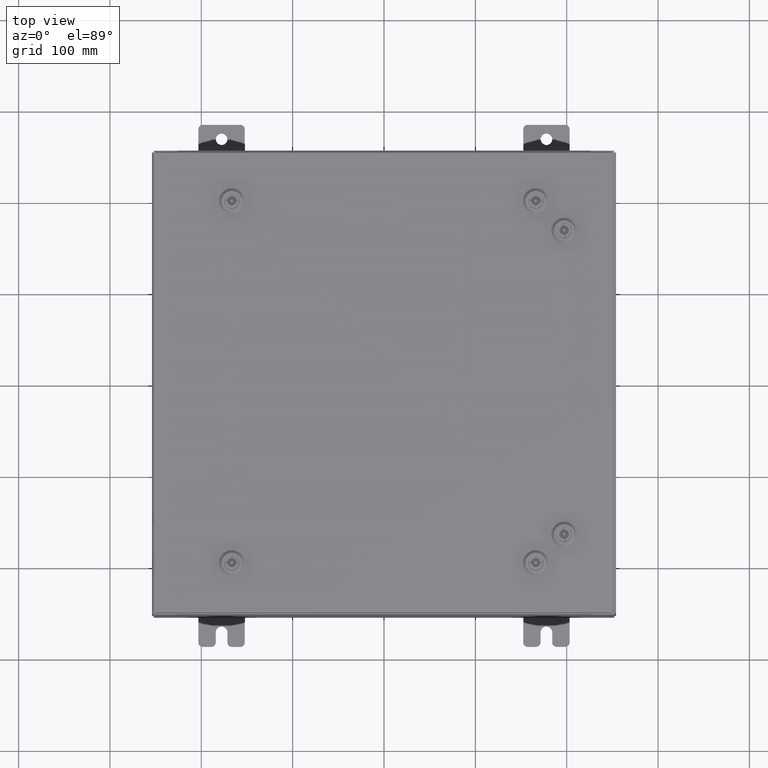
[diagram: clean part render]
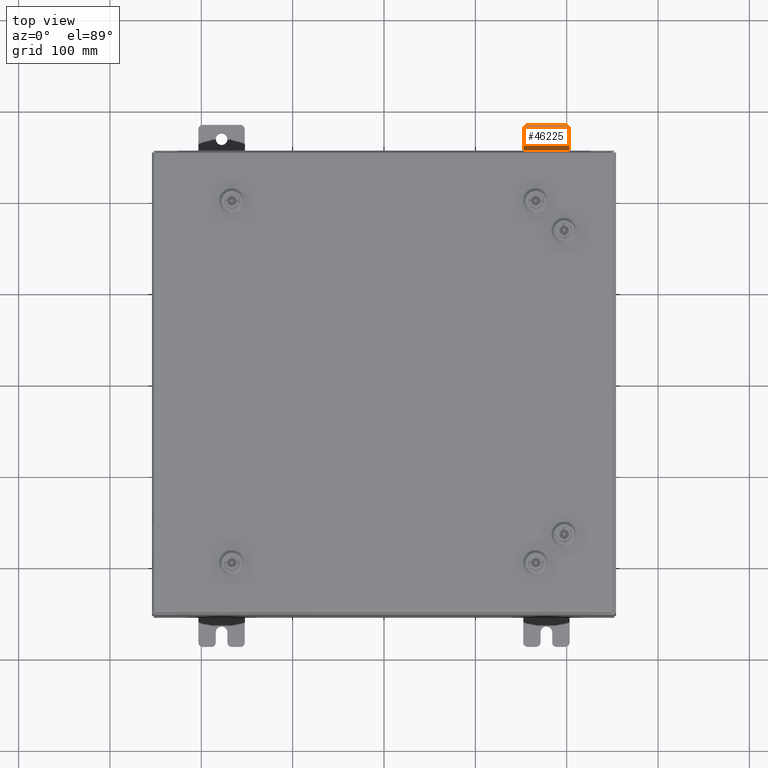
[diagram: same view with one face highlighted and labeled with its STEP entity id]
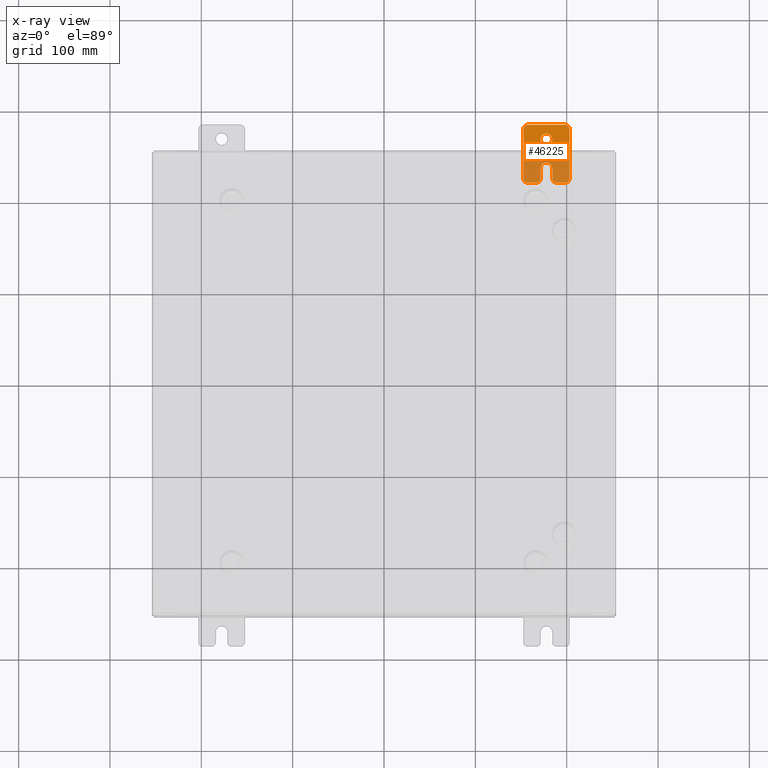
[diagram: x-ray of the same camera — body ghosted, the highlighted face saturated]
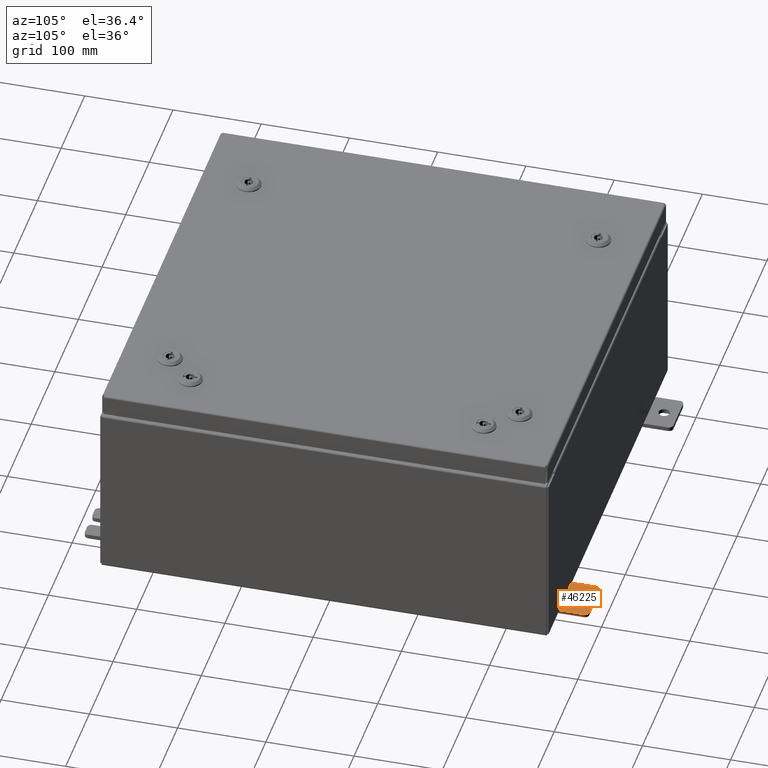
[diagram: same view with one face highlighted and labeled with its STEP entity id]
A machine part, top view. The second image highlights one B-rep face of the part: STEP entity #46225.
The next image is the same camera in x-ray: the body ghosted, the highlighted face saturated — about 53% of this face is hidden behind the body in this view.
A second angle (auxiliary view) of the same face is appended — the face is thin or edge-on in the first view.
In plain terms, the highlighted planar face has unit normal (0, 0, 1).
Its self-contained STEP definition (entity closure, byte-faithful):
#20 = ORIENTED_EDGE ( 'NONE', *, *, #58164, .T. ) ;
#1065 = AXIS2_PLACEMENT_3D ( 'NONE', #60147, #26041, #60358 ) ;
#1490 = CARTESIAN_POINT ( 'NONE',  ( 4.039428427013647300E-016, 0.6249999999999992200, -9.783840404509077400E-018 ) ) ;
#1939 = CARTESIAN_POINT ( 'NONE',  ( 4.780733988912460100E-016, -0.6249999999999993300, 5.858939755051854500E-017 ) ) ;
#2426 = DIRECTION ( 'NONE',  ( -6.556435184794182400E-016, -1.000000000000000000, -1.639108796198545600E-016 ) ) ;
#3705 = DIRECTION ( 'NONE',  ( 0.0000000000000000000, 0.0000000000000000000, -1.000000000000000000 ) ) ;
#3987 = CARTESIAN_POINT ( 'NONE',  ( 0.0000000000000000000, -1.250000000000003100, 0.4400000000000020000 ) ) ;
#4060 = ORIENTED_EDGE ( 'NONE', *, *, #44642, .T. ) ;
#4136 = EDGE_CURVE ( 'NONE', #46722, #30899, #31116, .T. ) ;
#5086 = VECTOR ( 'NONE', #50229, 39.37007874015748100 ) ;
#5337 = AXIS2_PLACEMENT_3D ( 'NONE', #6723, #41002, #11632 ) ;
#6185 = VECTOR ( 'NONE', #22309, 39.37007874015748100 ) ;
#6286 = VERTEX_POINT ( 'NONE', #50429 ) ;
#6351 = EDGE_CURVE ( 'NONE', #53822, #40255, #43489, .T. ) ;
#6433 = DIRECTION ( 'NONE',  ( -5.163192708025533800E-017, 0.0000000000000000000, -1.000000000000000000 ) ) ;
#6723 = CARTESIAN_POINT ( 'NONE',  ( 4.039428427013647300E-016, 0.6249999999999992200, -9.783840404509077400E-018 ) ) ;
#6826 = DIRECTION ( 'NONE',  ( 1.000000000000000000, 0.0000000000000000000, -0.0000000000000000000 ) ) ;
#6892 = DIRECTION ( 'NONE',  ( -6.523827964459551700E-016, -1.000000000000000000, 0.0000000000000000000 ) ) ;
#7139 = AXIS2_PLACEMENT_3D ( 'NONE', #7308, #41587, #12211 ) ;
#7216 = EDGE_CURVE ( 'NONE', #7818, #39175, #21941, .T. ) ;
#7308 = CARTESIAN_POINT ( 'NONE',  ( 0.0000000000000000000, -1.060000000000002100, 0.4400000000000016700 ) ) ;
#7551 = CIRCLE ( 'NONE', #56160, 0.1900000000000011100 ) ;
#7818 = VERTEX_POINT ( 'NONE', #26678 ) ;
#7877 = ORIENTED_EDGE ( 'NONE', *, *, #7216, .T. ) ;
#8533 = CARTESIAN_POINT ( 'NONE',  ( 4.168508244714285900E-016, 0.6249999999999992200, 0.2499999999999999200 ) ) ;
#9262 = VECTOR ( 'NONE', #2426, 39.37007874015748100 ) ;
#11632 = DIRECTION ( 'NONE',  ( -5.163192708025533800E-017, 0.0000000000000000000, -1.000000000000000000 ) ) ;
#11973 = DIRECTION ( 'NONE',  ( 1.000000000000000000, 0.0000000000000000000, -0.0000000000000000000 ) ) ;
#12211 = DIRECTION ( 'NONE',  ( 0.0000000000000000000, 0.0000000000000000000, -1.000000000000000000 ) ) ;
#12456 = AXIS2_PLACEMENT_3D ( 'NONE', #36177, #6826, #41111 ) ;
#12607 = CARTESIAN_POINT ( 'NONE',  ( 0.0000000000000000000, 1.249999999999997600, 0.9999999999999951200 ) ) ;
#12720 = AXIS2_PLACEMENT_3D ( 'NONE', #41343, #11973, #46263 ) ;
#13471 = DIRECTION ( 'NONE',  ( 0.0000000000000000000, 1.000000000000000000, -1.639108796198558100E-015 ) ) ;
#14847 = AXIS2_PLACEMENT_3D ( 'NONE', #1939, #36233, #6892 ) ;
#16546 = DIRECTION ( 'NONE',  ( 1.000000000000000000, 0.0000000000000000000, -0.0000000000000000000 ) ) ;
#17536 = DIRECTION ( 'NONE',  ( 0.0000000000000000000, -1.000000000000000000, 1.639108796198558100E-015 ) ) ;
#18513 = ORIENTED_EDGE ( 'NONE', *, *, #57307, .T. ) ;
#19196 = LINE ( 'NONE', #41849, #6185 ) ;
#19279 = EDGE_CURVE ( 'NONE', #38373, #26721, #28245, .T. ) ;
#20782 = LINE ( 'NONE', #12607, #45343 ) ;
#20973 = ORIENTED_EDGE ( 'NONE', *, *, #4136, .T. ) ;
#21487 = AXIS2_PLACEMENT_3D ( 'NONE', #22989, #57291, #27925 ) ;
#21696 = CIRCLE ( 'NONE', #14847, 0.2499999999999999200 ) ;
#21941 = CIRCLE ( 'NONE', #12720, 0.1900000000000011100 ) ;
#22176 = ORIENTED_EDGE ( 'NONE', *, *, #58089, .T. ) ;
#22309 = DIRECTION ( 'NONE',  ( 0.0000000000000000000, -1.639108796198553600E-015, -1.000000000000000000 ) ) ;
#22739 = CARTESIAN_POINT ( 'NONE',  ( 3.910348609313009100E-016, 0.6249999999999992200, -0.2499999999999999200 ) ) ;
#22989 = CARTESIAN_POINT ( 'NONE',  ( 0.0000000000000000000, 1.059999999999993600, -0.8100000000000089400 ) ) ;
#23369 = ORIENTED_EDGE ( 'NONE', *, *, #54704, .T. ) ;
#25197 = EDGE_LOOP ( 'NONE', ( #29363, #54084 ) ) ;
#25391 = CARTESIAN_POINT ( 'NONE',  ( 0.0000000000000000000, 1.059999999999993400, -1.000000000000010000 ) ) ;
#25859 = CARTESIAN_POINT ( 'NONE',  ( 0.0000000000000000000, 1.249999999999997300, 0.8099999999999935000 ) ) ;
#26041 = DIRECTION ( 'NONE',  ( 1.000000000000000000, 0.0000000000000000000, -0.0000000000000000000 ) ) ;
#26145 = EDGE_CURVE ( 'NONE', #29754, #46722, #45474, .T. ) ;
#26678 = CARTESIAN_POINT ( 'NONE',  ( 0.0000000000000000000, -1.250000000000005300, -0.8100000000000047200 ) ) ;
#26721 = VERTEX_POINT ( 'NONE', #25859 ) ;
#26800 = EDGE_CURVE ( 'NONE', #6286, #59626, #51590, .T. ) ;
#27079 = VECTOR ( 'NONE', #13471, 39.37007874015748100 ) ;
#27925 = DIRECTION ( 'NONE',  ( 0.0000000000000000000, 0.0000000000000000000, -1.000000000000000000 ) ) ;
#28004 = VERTEX_POINT ( 'NONE', #59402 ) ;
#28245 = LINE ( 'NONE', #32788, #42857 ) ;
#29363 = ORIENTED_EDGE ( 'NONE', *, *, #62142, .F. ) ;
#29580 = VERTEX_POINT ( 'NONE', #55824 ) ;
#29754 = VERTEX_POINT ( 'NONE', #3987 ) ;
#30899 = VERTEX_POINT ( 'NONE', #56439 ) ;
#31116 = LINE ( 'NONE', #45094, #5086 ) ;
#32788 = CARTESIAN_POINT ( 'NONE',  ( 0.0000000000000000000, 1.249999999999994200, -1.000000000000010400 ) ) ;
#33050 = DIRECTION ( 'NONE',  ( 1.000000000000000000, 0.0000000000000000000, -0.0000000000000000000 ) ) ;
#34527 = VERTEX_POINT ( 'NONE', #59338 ) ;
#34903 = CARTESIAN_POINT ( 'NONE',  ( 0.0000000000000000000, -1.250000000000005600, -1.000000000000006200 ) ) ;
#35553 = EDGE_CURVE ( 'NONE', #34527, #29754, #54566, .T. ) ;
#35775 = DIRECTION ( 'NONE',  ( 1.000000000000000000, -0.0000000000000000000, -5.163192708025532000E-017 ) ) ;
#36177 = CARTESIAN_POINT ( 'NONE',  ( 0.0000000000000000000, -1.060000000000003400, -0.4400000000000005000 ) ) ;
#36233 = DIRECTION ( 'NONE',  ( -1.000000000000000000, 6.523827964459549700E-016, 5.163192708025532000E-017 ) ) ;
#37102 = CARTESIAN_POINT ( 'NONE',  ( 0.0000000000000000000, -1.060000000000004500, -1.000000000000006400 ) ) ;
#38373 = VERTEX_POINT ( 'NONE', #56433 ) ;
#38581 = LINE ( 'NONE', #34903, #27079 ) ;
#39175 = VERTEX_POINT ( 'NONE', #37102 ) ;
#40234 = ORIENTED_EDGE ( 'NONE', *, *, #55071, .T. ) ;
#40255 = VERTEX_POINT ( 'NONE', #22739 ) ;
#41002 = DIRECTION ( 'NONE',  ( 1.000000000000000000, -0.0000000000000000000, -5.163192708025532000E-017 ) ) ;
#41111 = DIRECTION ( 'NONE',  ( 0.0000000000000000000, 0.0000000000000000000, -1.000000000000000000 ) ) ;
#41343 = CARTESIAN_POINT ( 'NONE',  ( 0.0000000000000000000, -1.060000000000004100, -0.8100000000000050500 ) ) ;
#41587 = DIRECTION ( 'NONE',  ( 1.000000000000000000, 0.0000000000000000000, -0.0000000000000000000 ) ) ;
#41698 = CARTESIAN_POINT ( 'NONE',  ( 0.0000000000000000000, -1.250000000000002200, 0.9999999999999992200 ) ) ;
#41849 = CARTESIAN_POINT ( 'NONE',  ( 0.0000000000000000000, -1.250000000000002200, 0.9999999999999992200 ) ) ;
#42184 = AXIS2_PLACEMENT_3D ( 'NONE', #1490, #35775, #6433 ) ;
#42668 = DIRECTION ( 'NONE',  ( 0.0000000000000000000, 1.639108796198553600E-015, 1.000000000000000000 ) ) ;
#42709 = CARTESIAN_POINT ( 'NONE',  ( 0.0000000000000000000, 1.059999999999996500, 0.9999999999999953400 ) ) ;
#42717 = ORIENTED_EDGE ( 'NONE', *, *, #26800, .T. ) ;
#42857 = VECTOR ( 'NONE', #42668, 39.37007874015748100 ) ;
#43191 = CARTESIAN_POINT ( 'NONE',  ( 1.928684683526972300E-016, -1.060000000000002100, 0.2500000000000005000 ) ) ;
#43489 = CIRCLE ( 'NONE', #5337, 0.2499999999999999200 ) ;
#43794 = ORIENTED_EDGE ( 'NONE', *, *, #59013, .T. ) ;
#44233 = VERTEX_POINT ( 'NONE', #25391 ) ;
#44642 = EDGE_CURVE ( 'NONE', #44233, #38373, #61816, .T. ) ;
#45094 = CARTESIAN_POINT ( 'NONE',  ( 6.829619984160658000E-017, -1.250000000000003800, 0.2500000000000005000 ) ) ;
#45343 = VECTOR ( 'NONE', #17536, 39.37007874015748100 ) ;
#45474 = CIRCLE ( 'NONE', #7139, 0.1900000000000011400 ) ;
#45491 = CARTESIAN_POINT ( 'NONE',  ( 0.0000000000000000000, -1.250000000000004700, -0.4400000000000002200 ) ) ;
#45922 = CARTESIAN_POINT ( 'NONE',  ( 0.0000000000000000000, 1.059999999999996300, 0.8099999999999938400 ) ) ;
#46225 = ADVANCED_FACE ( 'NONE', ( #59410, #46371 ), #50504, .T. ) ;
#46263 = DIRECTION ( 'NONE',  ( 0.0000000000000000000, 0.0000000000000000000, -1.000000000000000000 ) ) ;
#46371 = FACE_OUTER_BOUND ( 'NONE', #61755, .T. ) ;
#46722 = VERTEX_POINT ( 'NONE', #43191 ) ;
#49073 = VERTEX_POINT ( 'NONE', #42709 ) ;
#49084 = EDGE_CURVE ( 'NONE', #28004, #34527, #7551, .T. ) ;
#49906 = LINE ( 'NONE', #61138, #9262 ) ;
#50229 = DIRECTION ( 'NONE',  ( 6.556435184794182400E-016, 1.000000000000000000, 0.0000000000000000000 ) ) ;
#50429 = CARTESIAN_POINT ( 'NONE',  ( 1.928684683526964400E-016, -1.060000000000003400, -0.2499999999999994400 ) ) ;
#50504 = PLANE ( 'NONE',  #1065 ) ;
#50861 = DIRECTION ( 'NONE',  ( 0.0000000000000000000, 0.0000000000000000000, -1.000000000000000000 ) ) ;
#51552 = DIRECTION ( 'NONE',  ( 0.0000000000000000000, -1.639108796198553600E-015, -1.000000000000000000 ) ) ;
#51590 = CIRCLE ( 'NONE', #12456, 0.1900000000000011100 ) ;
#53070 = VECTOR ( 'NONE', #51552, 39.37007874015748100 ) ;
#53298 = ORIENTED_EDGE ( 'NONE', *, *, #19279, .T. ) ;
#53822 = VERTEX_POINT ( 'NONE', #8533 ) ;
#54084 = ORIENTED_EDGE ( 'NONE', *, *, #6351, .F. ) ;
#54566 = LINE ( 'NONE', #41698, #53070 ) ;
#54704 = EDGE_CURVE ( 'NONE', #30899, #29580, #21696, .T. ) ;
#54808 = CIRCLE ( 'NONE', #42184, 0.2499999999999999200 ) ;
#55071 = EDGE_CURVE ( 'NONE', #39175, #44233, #38581, .T. ) ;
#55200 = AXIS2_PLACEMENT_3D ( 'NONE', #45922, #16546, #50861 ) ;
#55824 = CARTESIAN_POINT ( 'NONE',  ( 4.780733988912460100E-016, -0.6249999999999993300, -0.2499999999999998600 ) ) ;
#56160 = AXIS2_PLACEMENT_3D ( 'NONE', #62406, #33050, #3705 ) ;
#56305 = ORIENTED_EDGE ( 'NONE', *, *, #26145, .T. ) ;
#56433 = CARTESIAN_POINT ( 'NONE',  ( 0.0000000000000000000, 1.249999999999994700, -0.8100000000000092700 ) ) ;
#56439 = CARTESIAN_POINT ( 'NONE',  ( 0.0000000000000000000, -0.6249999999999992200, 0.2500000000000005000 ) ) ;
#57291 = DIRECTION ( 'NONE',  ( 1.000000000000000000, 0.0000000000000000000, -0.0000000000000000000 ) ) ;
#57307 = EDGE_CURVE ( 'NONE', #49073, #28004, #20782, .T. ) ;
#58089 = EDGE_CURVE ( 'NONE', #29580, #6286, #49906, .T. ) ;
#58164 = EDGE_CURVE ( 'NONE', #59626, #7818, #19196, .T. ) ;
#59013 = EDGE_CURVE ( 'NONE', #26721, #49073, #59805, .T. ) ;
#59338 = CARTESIAN_POINT ( 'NONE',  ( 0.0000000000000000000, -1.250000000000002400, 0.8099999999999980500 ) ) ;
#59402 = CARTESIAN_POINT ( 'NONE',  ( 0.0000000000000000000, -1.060000000000001200, 0.9999999999999988900 ) ) ;
#59410 = FACE_BOUND ( 'NONE', #25197, .T. ) ;
#59626 = VERTEX_POINT ( 'NONE', #45491 ) ;
#59805 = CIRCLE ( 'NONE', #55200, 0.1900000000000011100 ) ;
#60147 = CARTESIAN_POINT ( 'NONE',  ( 0.0000000000000000000, 0.0000000000000000000, 0.0000000000000000000 ) ) ;
#60358 = DIRECTION ( 'NONE',  ( -0.0000000000000000000, 0.0000000000000000000, -1.000000000000000000 ) ) ;
#61046 = ORIENTED_EDGE ( 'NONE', *, *, #49084, .T. ) ;
#61138 = CARTESIAN_POINT ( 'NONE',  ( 4.780733988912460100E-016, -0.6249999999999993300, -0.2499999999999993900 ) ) ;
#61240 = ORIENTED_EDGE ( 'NONE', *, *, #35553, .T. ) ;
#61755 = EDGE_LOOP ( 'NONE', ( #18513, #61046, #61240, #56305, #20973, #23369, #22176, #42717, #20, #7877, #40234, #4060, #53298, #43794 ) ) ;
#61816 = CIRCLE ( 'NONE', #21487, 0.1900000000000011100 ) ;
#62142 = EDGE_CURVE ( 'NONE', #40255, #53822, #54808, .T. ) ;
#62406 = CARTESIAN_POINT ( 'NONE',  ( 0.0000000000000000000, -1.060000000000001600, 0.8099999999999978300 ) ) ;